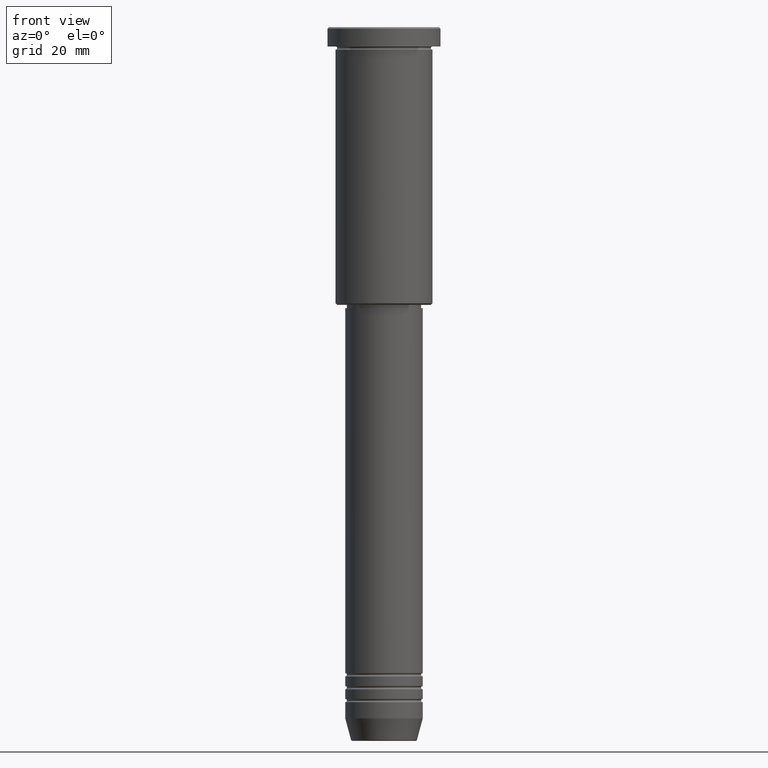
[diagram: clean part render]
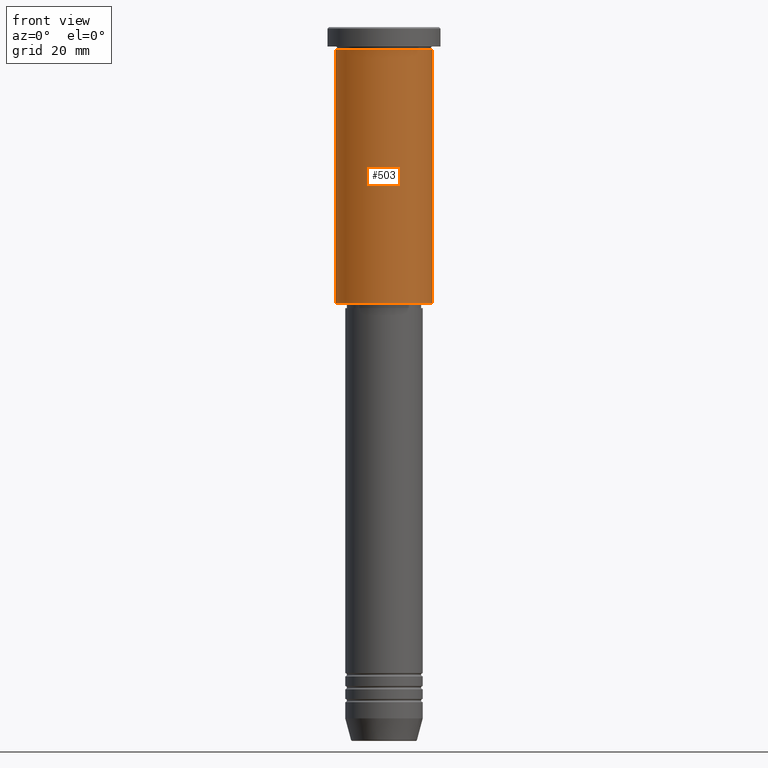
[diagram: same view with one face highlighted and labeled with its STEP entity id]
A machine part, front view. The second image highlights one B-rep face of the part: STEP entity #503.
In plain terms, the highlighted cylindrical surface (partial cylindrical patch) has radius 15 mm, axis along (-0, -0, 1).
Its self-contained STEP definition (entity closure, byte-faithful):
#36 = EDGE_CURVE ( 'NONE', #671, #1087, #659, .T. ) ;
#131 = CARTESIAN_POINT ( 'NONE',  ( -15.00000000000000000, 1.836970198721029589E-15, -6.999999999999995559 ) ) ;
#209 = DIRECTION ( 'NONE',  ( -0.000000000000000000, -0.000000000000000000, 1.000000000000000000 ) ) ;
#212 = CIRCLE ( 'NONE', #773, 15.00000000000000000 ) ;
#237 = EDGE_CURVE ( 'NONE', #623, #342, #877, .T. ) ;
#252 = CARTESIAN_POINT ( 'NONE',  ( 15.00000000000000000, 0.000000000000000000, -6.999999999999995559 ) ) ;
#300 = CYLINDRICAL_SURFACE ( 'NONE', #656, 15.00000000000000000 ) ;
#330 = AXIS2_PLACEMENT_3D ( 'NONE', #824, #845, #662 ) ;
#336 = DIRECTION ( 'NONE',  ( -0.000000000000000000, -0.000000000000000000, 1.000000000000000000 ) ) ;
#342 = VERTEX_POINT ( 'NONE', #252 ) ;
#353 = DIRECTION ( 'NONE',  ( 1.000000000000000000, 0.000000000000000000, 0.000000000000000000 ) ) ;
#404 = VECTOR ( 'NONE', #757, 1000.000000000000000 ) ;
#490 = ORIENTED_EDGE ( 'NONE', *, *, #36, .F. ) ;
#498 = ORIENTED_EDGE ( 'NONE', *, *, #237, .T. ) ;
#503 = ADVANCED_FACE ( 'NONE', ( #1119 ), #300, .T. ) ;
#623 = VERTEX_POINT ( 'NONE', #958 ) ;
#626 = CARTESIAN_POINT ( 'NONE',  ( -15.00000000000000000, 1.836970198721029589E-15, -85.50000000000005684 ) ) ;
#656 = AXIS2_PLACEMENT_3D ( 'NONE', #1034, #209, #1101 ) ;
#659 = LINE ( 'NONE', #763, #404 ) ;
#662 = DIRECTION ( 'NONE',  ( -1.000000000000000000, 0.000000000000000000, 0.000000000000000000 ) ) ;
#671 = VERTEX_POINT ( 'NONE', #626 ) ;
#672 = EDGE_CURVE ( 'NONE', #1087, #342, #212, .T. ) ;
#757 = DIRECTION ( 'NONE',  ( -0.000000000000000000, -0.000000000000000000, 1.000000000000000000 ) ) ;
#763 = CARTESIAN_POINT ( 'NONE',  ( -15.00000000000000000, 1.836970198721029589E-15, 0.000000000000000000 ) ) ;
#773 = AXIS2_PLACEMENT_3D ( 'NONE', #895, #336, #353 ) ;
#809 = VECTOR ( 'NONE', #1066, 1000.000000000000000 ) ;
#824 = CARTESIAN_POINT ( 'NONE',  ( 0.000000000000000000, 0.000000000000000000, -85.50000000000005684 ) ) ;
#827 = EDGE_CURVE ( 'NONE', #671, #623, #1150, .T. ) ;
#845 = DIRECTION ( 'NONE',  ( -0.000000000000000000, -0.000000000000000000, 1.000000000000000000 ) ) ;
#877 = LINE ( 'NONE', #1045, #809 ) ;
#895 = CARTESIAN_POINT ( 'NONE',  ( 0.000000000000000000, 0.000000000000000000, -6.999999999999995559 ) ) ;
#958 = CARTESIAN_POINT ( 'NONE',  ( 15.00000000000000000, 0.000000000000000000, -85.50000000000005684 ) ) ;
#1034 = CARTESIAN_POINT ( 'NONE',  ( 0.000000000000000000, 0.000000000000000000, 0.000000000000000000 ) ) ;
#1045 = CARTESIAN_POINT ( 'NONE',  ( 15.00000000000000000, 0.000000000000000000, 0.000000000000000000 ) ) ;
#1052 = EDGE_LOOP ( 'NONE', ( #490, #1117, #498, #1109 ) ) ;
#1066 = DIRECTION ( 'NONE',  ( -0.000000000000000000, -0.000000000000000000, 1.000000000000000000 ) ) ;
#1087 = VERTEX_POINT ( 'NONE', #131 ) ;
#1101 = DIRECTION ( 'NONE',  ( 1.000000000000000000, 0.000000000000000000, 0.000000000000000000 ) ) ;
#1109 = ORIENTED_EDGE ( 'NONE', *, *, #672, .F. ) ;
#1117 = ORIENTED_EDGE ( 'NONE', *, *, #827, .T. ) ;
#1119 = FACE_OUTER_BOUND ( 'NONE', #1052, .T. ) ;
#1150 = CIRCLE ( 'NONE', #330, 15.00000000000000000 ) ;